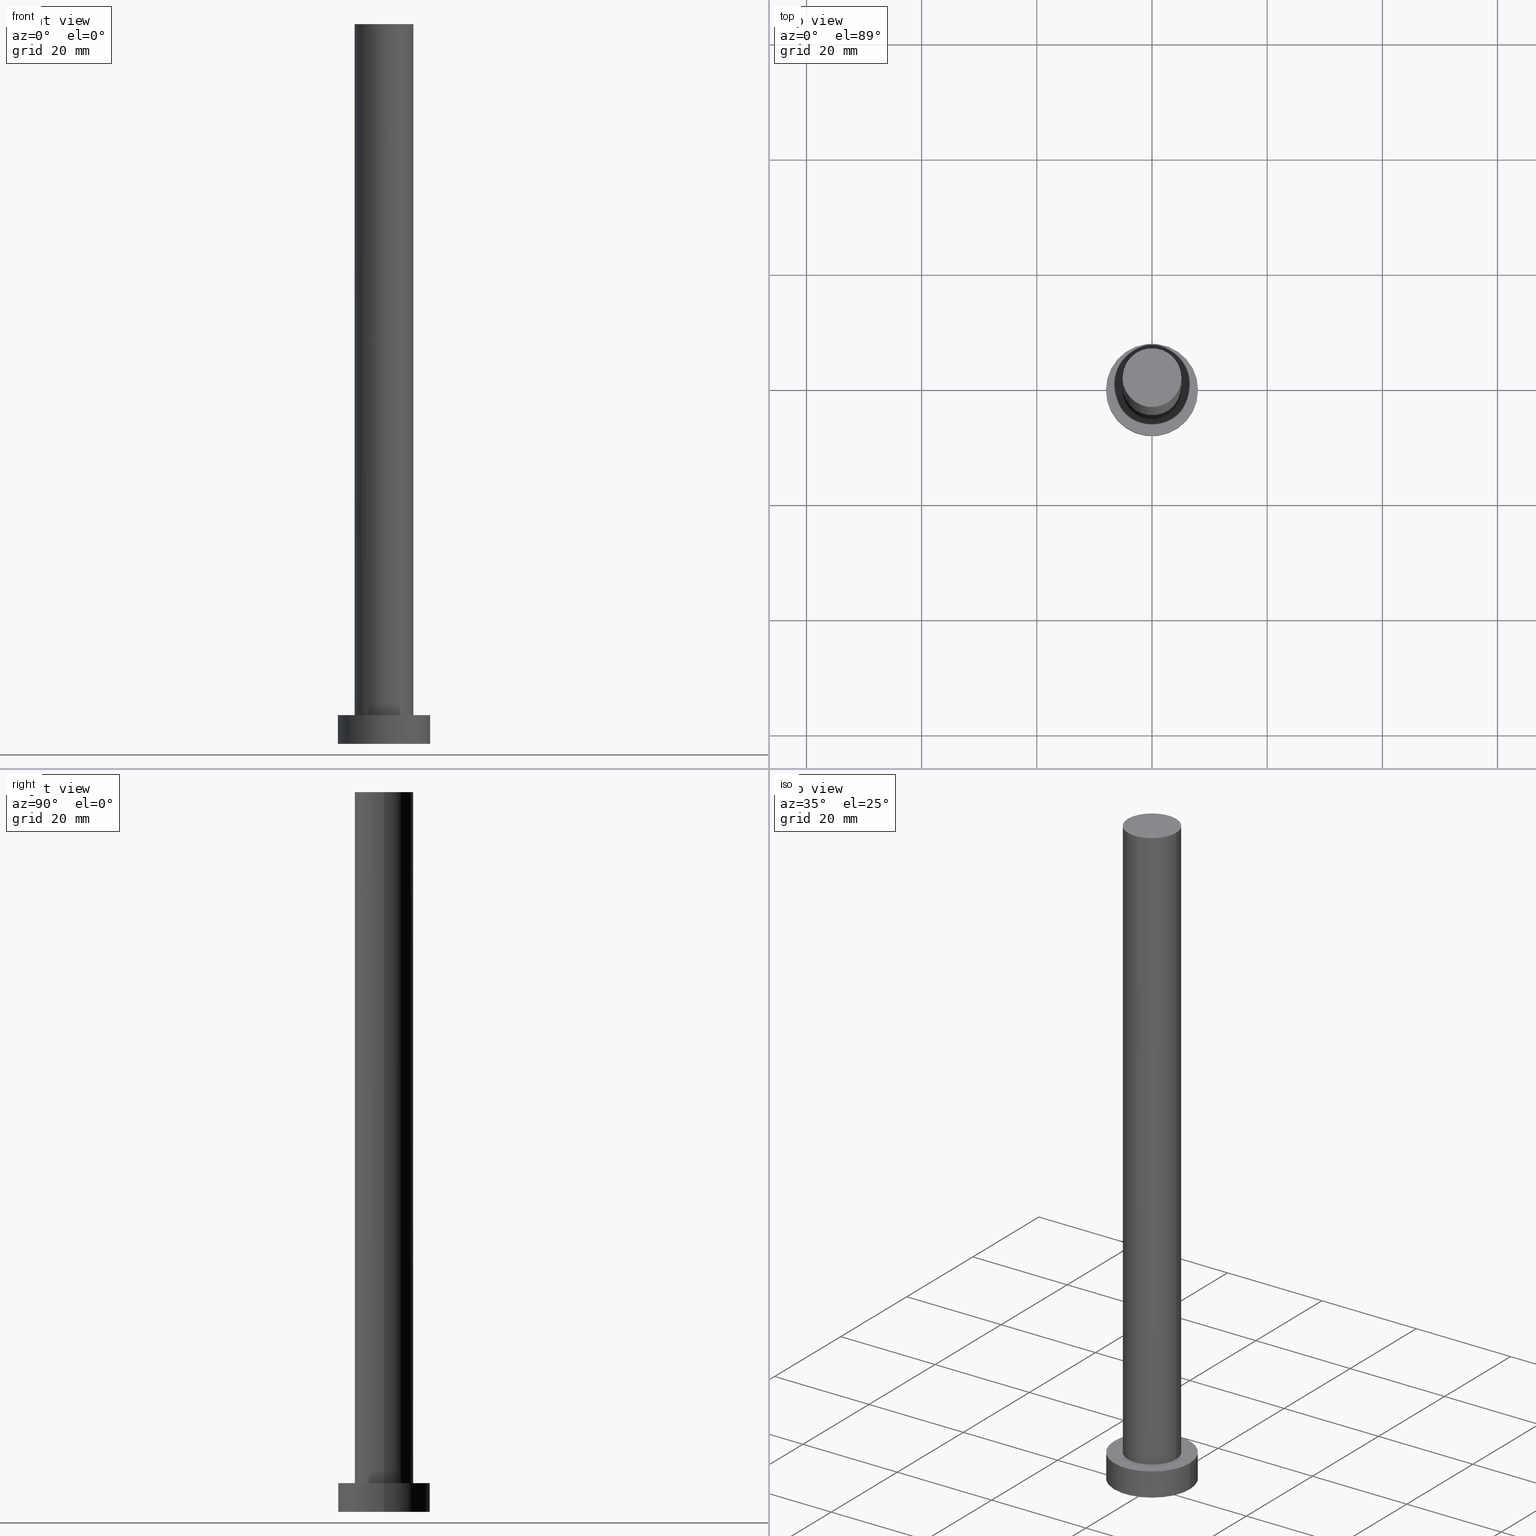
[diagram: canonical four-view strip — front | top / right | iso, engineering-drawing reading convention]
A machine part, canonical four-view strip (front | top / right | iso — engineering-drawing reading convention). The complete STEP part file that produces these views, byte-faithful:
ISO-10303-21;
HEADER;
FILE_DESCRIPTION (( 'STEP AP203' ),
    '1' );
FILE_NAME ('1179.STEP',
    '2023-02-12T11:25:21',
    ( '' ),
    ( '' ),
    'SwSTEP 2.0',
    'SolidWorks 2019',
    '' );
FILE_SCHEMA (( 'CONFIG_CONTROL_DESIGN' ));
ENDSEC;

DATA;
#1 = LINE ( 'NONE', #50, #9 ) ;
#2 = DIRECTION ( 'NONE',  ( 1.000000000000000000, 0.000000000000000000, 0.000000000000000000 ) ) ;
#3 = ORIENTED_EDGE ( 'NONE', *, *, #122, .F. ) ;
#4 = CARTESIAN_POINT ( 'NONE',  ( 8.000000000000000000, 9.797174393178825657E-16, 5.000000000000000000 ) ) ;
#5 = MECHANICAL_CONTEXT ( 'NONE', #157, 'mechanical' ) ;
#6 = ADVANCED_FACE ( 'NONE', ( #36 ), #31, .T. ) ;
#7 = COORDINATED_UNIVERSAL_TIME_OFFSET ( 1, 0, .AHEAD. ) ;
#8 = PERSON_AND_ORGANIZATION ( #10, #100 ) ;
#9 = VECTOR ( 'NONE', #140, 1000.000000000000000 ) ;
#10 = PERSON ( 'NEUR�EN�', 'NEUR�EN�', 'NEUR�EN�', ('NEUR�EN�'), ('NEUR�EN�'), ('NEUR�EN�') ) ;
#11 = CIRCLE ( 'NONE', #68, 5.100000000000001421 ) ;
#12 = CALENDAR_DATE ( 2023, 12, 2 ) ;
#13 = VERTEX_POINT ( 'NONE', #98 ) ;
#14 = ORIENTED_EDGE ( 'NONE', *, *, #19, .T. ) ;
#15 = DIRECTION ( 'NONE',  ( -0.000000000000000000, -0.000000000000000000, -1.000000000000000000 ) ) ;
#16 = APPROVAL_PERSON_ORGANIZATION ( #191, #217, #170 ) ;
#17 = PRODUCT_RELATED_PRODUCT_CATEGORY ( 'detail', '', ( #242 ) ) ;
#18 = DIRECTION ( 'NONE',  ( 1.000000000000000000, 0.000000000000000000, -0.000000000000000000 ) ) ;
#19 = EDGE_CURVE ( 'NONE', #34, #42, #172, .T. ) ;
#20 = CARTESIAN_POINT ( 'NONE',  ( 0.000000000000000000, 0.000000000000000000, 125.0000000000000000 ) ) ;
#21 = PRODUCT_DEFINITION_SHAPE ( 'NONE', 'NONE',  #144 ) ;
#22 = DIRECTION ( 'NONE',  ( 0.000000000000000000, 0.000000000000000000, 1.000000000000000000 ) ) ;
#23 = ORIENTED_EDGE ( 'NONE', *, *, #154, .T. ) ;
#24 = PLANE ( 'NONE',  #121 ) ;
#25 = AXIS2_PLACEMENT_3D ( 'NONE', #20, #162, #142 ) ;
#26 = CARTESIAN_POINT ( 'NONE',  ( 0.000000000000000000, 0.000000000000000000, 5.000000000000000000 ) ) ;
#27 = EDGE_CURVE ( 'NONE', #113, #34, #137, .T. ) ;
#28 = DIRECTION ( 'NONE',  ( 0.000000000000000000, 0.000000000000000000, 1.000000000000000000 ) ) ;
#29 = LINE ( 'NONE', #226, #197 ) ;
#30 = DATE_AND_TIME ( #252, #241 ) ;
#31 = CYLINDRICAL_SURFACE ( 'NONE', #85, 8.000000000000000000 ) ;
#32 = PERSON_AND_ORGANIZATION_ROLE ( 'design_supplier' ) ;
#33 = LOCAL_TIME ( 12, 25, 21.00000000000000000, #58 ) ;
#34 = VERTEX_POINT ( 'NONE', #127 ) ;
#35 = ORIENTED_EDGE ( 'NONE', *, *, #19, .F. ) ;
#36 = FACE_OUTER_BOUND ( 'NONE', #116, .T. ) ;
#37 = EDGE_LOOP ( 'NONE', ( #61, #233, #132, #130 ) ) ;
#38 = DIRECTION ( 'NONE',  ( 1.000000000000000000, 0.000000000000000000, 0.000000000000000000 ) ) ;
#39 = ORIENTED_EDGE ( 'NONE', *, *, #27, .T. ) ;
#40 = CC_DESIGN_PERSON_AND_ORGANIZATION_ASSIGNMENT ( #8, #245, ( #212 ) ) ;
#41 = CARTESIAN_POINT ( 'NONE',  ( -5.100000000000001421, 0.000000000000000000, 125.0000000000000000 ) ) ;
#42 = VERTEX_POINT ( 'NONE', #149 ) ;
#43 = CC_DESIGN_APPROVAL ( #217, ( #212 ) ) ;
#44 = CARTESIAN_POINT ( 'NONE',  ( -5.100000000000001421, 0.000000000000000000, 5.000000000000000000 ) ) ;
#45 = AXIS2_PLACEMENT_3D ( 'NONE', #179, #47, #201 ) ;
#46 = CARTESIAN_POINT ( 'NONE',  ( 0.000000000000000000, 0.000000000000000000, 125.0000000000000000 ) ) ;
#47 = DIRECTION ( 'NONE',  ( 0.000000000000000000, 0.000000000000000000, 1.000000000000000000 ) ) ;
#48 = EDGE_LOOP ( 'NONE', ( #202, #164 ) ) ;
#49 = CC_DESIGN_PERSON_AND_ORGANIZATION_ASSIGNMENT ( #171, #126, ( #144 ) ) ;
#50 = CARTESIAN_POINT ( 'NONE',  ( 5.100000000000001421, 6.245698675651502811E-16, 125.0000000000000000 ) ) ;
#51 = CIRCLE ( 'NONE', #86, 8.000000000000000000 ) ;
#52 = COORDINATED_UNIVERSAL_TIME_OFFSET ( 1, 0, .AHEAD. ) ;
#53 = APPROVAL_DATE_TIME ( #209, #87 ) ;
#54 = PERSON_AND_ORGANIZATION_ROLE ( 'creator' ) ;
#55 = ORIENTED_EDGE ( 'NONE', *, *, #239, .T. ) ;
#56 = EDGE_LOOP ( 'NONE', ( #23, #55 ) ) ;
#57 = VECTOR ( 'NONE', #210, 1000.000000000000000 ) ;
#58 = COORDINATED_UNIVERSAL_TIME_OFFSET ( 1, 0, .AHEAD. ) ;
#59 = APPLICATION_CONTEXT ( 'configuration controlled 3d designs of mechanical parts and assemblies' ) ;
#60 = EDGE_CURVE ( 'NONE', #107, #207, #29, .T. ) ;
#61 = ORIENTED_EDGE ( 'NONE', *, *, #177, .F. ) ;
#62 = CIRCLE ( 'NONE', #93, 5.100000000000001421 ) ;
#63 = APPROVAL_PERSON_ORGANIZATION ( #73, #87, #231 ) ;
#64 = DIRECTION ( 'NONE',  ( 1.000000000000000000, 0.000000000000000000, 0.000000000000000000 ) ) ;
#65 = CC_DESIGN_DATE_AND_TIME_ASSIGNMENT ( #74, #112, ( #212 ) ) ;
#66 = CYLINDRICAL_SURFACE ( 'NONE', #215, 8.000000000000000000 ) ;
#67 = DIRECTION ( 'NONE',  ( 1.000000000000000000, 0.000000000000000000, -0.000000000000000000 ) ) ;
#68 = AXIS2_PLACEMENT_3D ( 'NONE', #89, #105, #184 ) ;
#69 = DIRECTION ( 'NONE',  ( -1.000000000000000000, 0.000000000000000000, 0.000000000000000000 ) ) ;
#70 = CARTESIAN_POINT ( 'NONE',  ( 0.000000000000000000, 0.000000000000000000, 125.0000000000000000 ) ) ;
#71 = CARTESIAN_POINT ( 'NONE',  ( 0.000000000000000000, 0.000000000000000000, 5.000000000000000000 ) ) ;
#72 = AXIS2_PLACEMENT_3D ( 'NONE', #70, #160, #2 ) ;
#73 = PERSON_AND_ORGANIZATION ( #10, #100 ) ;
#74 = DATE_AND_TIME ( #96, #152 ) ;
#75 = DIRECTION ( 'NONE',  ( 0.000000000000000000, 0.000000000000000000, 1.000000000000000000 ) ) ;
#76 = COORDINATED_UNIVERSAL_TIME_OFFSET ( 1, 0, .AHEAD. ) ;
#77 = DIRECTION ( 'NONE',  ( -0.000000000000000000, -0.000000000000000000, -1.000000000000000000 ) ) ;
#78 = CARTESIAN_POINT ( 'NONE',  ( 0.000000000000000000, 0.000000000000000000, 0.000000000000000000 ) ) ;
#79 = EDGE_CURVE ( 'NONE', #183, #207, #62, .T. ) ;
#80 = ORIENTED_EDGE ( 'NONE', *, *, #79, .F. ) ;
#81 = ORIENTED_EDGE ( 'NONE', *, *, #246, .T. ) ;
#82 = DIRECTION ( 'NONE',  ( 1.000000000000000000, 0.000000000000000000, 0.000000000000000000 ) ) ;
#83 = MANIFOLD_SOLID_BREP ( 'P�idat vysunut�m3', #167 ) ;
#84 = DIRECTION ( 'NONE',  ( 0.000000000000000000, 0.000000000000000000, 1.000000000000000000 ) ) ;
#85 = AXIS2_PLACEMENT_3D ( 'NONE', #169, #77, #228 ) ;
#86 = AXIS2_PLACEMENT_3D ( 'NONE', #158, #235, #64 ) ;
#87 = APPROVAL ( #224, 'NEUR�EN�' ) ;
#88 =( LENGTH_UNIT ( ) NAMED_UNIT ( * ) SI_UNIT ( .MILLI., .METRE. ) );
#89 = CARTESIAN_POINT ( 'NONE',  ( 0.000000000000000000, 0.000000000000000000, 125.0000000000000000 ) ) ;
#90 = CARTESIAN_POINT ( 'NONE',  ( 0.000000000000000000, 0.000000000000000000, 0.000000000000000000 ) ) ;
#91 = ORIENTED_EDGE ( 'NONE', *, *, #79, .T. ) ;
#92 = DIRECTION ( 'NONE',  ( 1.000000000000000000, 0.000000000000000000, 0.000000000000000000 ) ) ;
#93 = AXIS2_PLACEMENT_3D ( 'NONE', #71, #146, #82 ) ;
#94 = APPROVAL_PERSON_ORGANIZATION ( #189, #128, #147 ) ;
#95 = EDGE_CURVE ( 'NONE', #34, #113, #51, .T. ) ;
#96 = CALENDAR_DATE ( 2023, 12, 2 ) ;
#97 = APPROVAL_DATE_TIME ( #30, #128 ) ;
#98 = CARTESIAN_POINT ( 'NONE',  ( 5.100000000000001421, 6.245698675651502811E-16, 125.0000000000000000 ) ) ;
#99 = CC_DESIGN_APPROVAL ( #128, ( #144 ) ) ;
#100 = ORGANIZATION ( 'NEUR�EN�', 'NEUR�EN�', '' ) ;
#101 = CYLINDRICAL_SURFACE ( 'NONE', #25, 5.100000000000001421 ) ;
#102 = CC_DESIGN_PERSON_AND_ORGANIZATION_ASSIGNMENT ( #108, #32, ( #204 ) ) ;
#103 = FACE_OUTER_BOUND ( 'NONE', #56, .T. ) ;
#104 = EDGE_LOOP ( 'NONE', ( #187, #39 ) ) ;
#105 = DIRECTION ( 'NONE',  ( 0.000000000000000000, 0.000000000000000000, 1.000000000000000000 ) ) ;
#106 = AXIS2_PLACEMENT_3D ( 'NONE', #26, #196, #18 ) ;
#107 = VERTEX_POINT ( 'NONE', #41 ) ;
#108 = PERSON_AND_ORGANIZATION ( #10, #100 ) ;
#109 = CALENDAR_DATE ( 2023, 12, 2 ) ;
#110 =( NAMED_UNIT ( * ) PLANE_ANGLE_UNIT ( ) SI_UNIT ( $, .RADIAN. ) );
#111 = CC_DESIGN_SECURITY_CLASSIFICATION ( #212, ( #204 ) ) ;
#112 = DATE_TIME_ROLE ( 'classification_date' ) ;
#113 = VERTEX_POINT ( 'NONE', #237 ) ;
#114 = DATE_AND_TIME ( #151, #138 ) ;
#115 = VERTEX_POINT ( 'NONE', #161 ) ;
#116 = EDGE_LOOP ( 'NONE', ( #243, #81, #134, #35 ) ) ;
#117 = AXIS2_PLACEMENT_3D ( 'NONE', #46, #182, #178 ) ;
#118 = AXIS2_PLACEMENT_3D ( 'NONE', #165, #139, #69 ) ;
#119 = PLANE ( 'NONE',  #106 ) ;
#120 = DIRECTION ( 'NONE',  ( 0.000000000000000000, 0.000000000000000000, 1.000000000000000000 ) ) ;
#121 = AXIS2_PLACEMENT_3D ( 'NONE', #222, #22, #67 ) ;
#122 = EDGE_CURVE ( 'NONE', #207, #183, #185, .T. ) ;
#123 = DIRECTION ( 'NONE',  ( -1.000000000000000000, 0.000000000000000000, 0.000000000000000000 ) ) ;
#124 = ORIENTED_EDGE ( 'NONE', *, *, #246, .F. ) ;
#125 = CARTESIAN_POINT ( 'NONE',  ( 0.000000000000000000, 0.000000000000000000, 5.000000000000000000 ) ) ;
#126 = PERSON_AND_ORGANIZATION_ROLE ( 'creator' ) ;
#127 = CARTESIAN_POINT ( 'NONE',  ( -8.000000000000000000, 0.000000000000000000, 5.000000000000000000 ) ) ;
#128 = APPROVAL ( #148, 'NEUR�EN�' ) ;
#129 = PERSON_AND_ORGANIZATION ( #10, #100 ) ;
#130 = ORIENTED_EDGE ( 'NONE', *, *, #122, .T. ) ;
#131 = APPLICATION_PROTOCOL_DEFINITION ( 'international standard', 'config_control_design', 1994, #157 ) ;
#132 = ORIENTED_EDGE ( 'NONE', *, *, #60, .T. ) ;
#133 = SHAPE_DEFINITION_REPRESENTATION ( #21, #159 ) ;
#134 = ORIENTED_EDGE ( 'NONE', *, *, #234, .T. ) ;
#135 = EDGE_LOOP ( 'NONE', ( #211, #193, #91, #221 ) ) ;
#136 = ADVANCED_FACE ( 'NONE', ( #199 ), #24, .F. ) ;
#137 = CIRCLE ( 'NONE', #195, 8.000000000000000000 ) ;
#138 = LOCAL_TIME ( 12, 25, 21.00000000000000000, #76 ) ;
#139 = DIRECTION ( 'NONE',  ( -0.000000000000000000, -0.000000000000000000, -1.000000000000000000 ) ) ;
#140 = DIRECTION ( 'NONE',  ( -0.000000000000000000, -0.000000000000000000, -1.000000000000000000 ) ) ;
#141 = CYLINDRICAL_SURFACE ( 'NONE', #118, 5.100000000000001421 ) ;
#142 = DIRECTION ( 'NONE',  ( -1.000000000000000000, 0.000000000000000000, 0.000000000000000000 ) ) ;
#143 = PLANE ( 'NONE',  #117 ) ;
#144 = PRODUCT_DEFINITION ( 'NEZN�M�', '', #204, #155 ) ;
#145 = COORDINATED_UNIVERSAL_TIME_OFFSET ( 1, 0, .AHEAD. ) ;
#146 = DIRECTION ( 'NONE',  ( 0.000000000000000000, 0.000000000000000000, 1.000000000000000000 ) ) ;
#147 = APPROVAL_ROLE ( '' ) ;
#148 = APPROVAL_STATUS ( 'not_yet_approved' ) ;
#149 = CARTESIAN_POINT ( 'NONE',  ( -8.000000000000000000, 0.000000000000000000, 0.000000000000000000 ) ) ;
#150 = ADVANCED_FACE ( 'NONE', ( #103 ), #143, .T. ) ;
#151 = CALENDAR_DATE ( 2023, 12, 2 ) ;
#152 = LOCAL_TIME ( 12, 25, 21.00000000000000000, #145 ) ;
#153 = DIRECTION ( 'NONE',  ( 1.000000000000000000, 0.000000000000000000, 0.000000000000000000 ) ) ;
#154 = EDGE_CURVE ( 'NONE', #107, #13, #255, .T. ) ;
#155 = DESIGN_CONTEXT ( 'detailed design', #59, 'design' ) ;
#156 = CIRCLE ( 'NONE', #214, 8.000000000000000000 ) ;
#157 = APPLICATION_CONTEXT ( 'configuration controlled 3d designs of mechanical parts and assemblies' ) ;
#158 = CARTESIAN_POINT ( 'NONE',  ( 0.000000000000000000, 0.000000000000000000, 5.000000000000000000 ) ) ;
#159 = ADVANCED_BREP_SHAPE_REPRESENTATION ( '1179', ( #83, #229 ), #208 ) ;
#160 = DIRECTION ( 'NONE',  ( 0.000000000000000000, 0.000000000000000000, 1.000000000000000000 ) ) ;
#161 = CARTESIAN_POINT ( 'NONE',  ( 8.000000000000000000, 9.797174393178825657E-16, 0.000000000000000000 ) ) ;
#162 = DIRECTION ( 'NONE',  ( -0.000000000000000000, -0.000000000000000000, -1.000000000000000000 ) ) ;
#163 = UNCERTAINTY_MEASURE_WITH_UNIT (LENGTH_MEASURE( 1.000000000000000082E-05 ), #88, 'distance_accuracy_value', 'NONE');
#164 = ORIENTED_EDGE ( 'NONE', *, *, #234, .F. ) ;
#165 = CARTESIAN_POINT ( 'NONE',  ( 0.000000000000000000, 0.000000000000000000, 125.0000000000000000 ) ) ;
#166 = DATE_TIME_ROLE ( 'creation_date' ) ;
#167 = CLOSED_SHELL ( 'NONE', ( #213, #6, #230, #251, #136, #200, #150 ) ) ;
#168 = VECTOR ( 'NONE', #203, 1000.000000000000000 ) ;
#169 = CARTESIAN_POINT ( 'NONE',  ( 0.000000000000000000, 0.000000000000000000, 5.000000000000000000 ) ) ;
#170 = APPROVAL_ROLE ( '' ) ;
#171 = PERSON_AND_ORGANIZATION ( #10, #100 ) ;
#172 = LINE ( 'NONE', #232, #57 ) ;
#173 = EDGE_LOOP ( 'NONE', ( #3, #80 ) ) ;
#174 = CC_DESIGN_DATE_AND_TIME_ASSIGNMENT ( #205, #166, ( #144 ) ) ;
#175 = ORIENTED_EDGE ( 'NONE', *, *, #95, .F. ) ;
#176 = CC_DESIGN_APPROVAL ( #87, ( #204 ) ) ;
#177 = EDGE_CURVE ( 'NONE', #13, #183, #1, .T. ) ;
#178 = DIRECTION ( 'NONE',  ( 1.000000000000000000, 0.000000000000000000, -0.000000000000000000 ) ) ;
#179 = CARTESIAN_POINT ( 'NONE',  ( 0.000000000000000000, 0.000000000000000000, 0.000000000000000000 ) ) ;
#180 = FACE_OUTER_BOUND ( 'NONE', #192, .T. ) ;
#181 = ORIENTED_EDGE ( 'NONE', *, *, #194, .T. ) ;
#182 = DIRECTION ( 'NONE',  ( 0.000000000000000000, 0.000000000000000000, 1.000000000000000000 ) ) ;
#183 = VERTEX_POINT ( 'NONE', #219 ) ;
#184 = DIRECTION ( 'NONE',  ( 1.000000000000000000, 0.000000000000000000, 0.000000000000000000 ) ) ;
#185 = CIRCLE ( 'NONE', #223, 5.100000000000001421 ) ;
#186 = LOCAL_TIME ( 12, 25, 21.00000000000000000, #52 ) ;
#187 = ORIENTED_EDGE ( 'NONE', *, *, #95, .T. ) ;
#188 = SECURITY_CLASSIFICATION_LEVEL ( 'unclassified' ) ;
#189 = PERSON_AND_ORGANIZATION ( #10, #100 ) ;
#190 = PERSON_AND_ORGANIZATION ( #10, #100 ) ;
#191 = PERSON_AND_ORGANIZATION ( #10, #100 ) ;
#192 = EDGE_LOOP ( 'NONE', ( #124, #175, #14, #181 ) ) ;
#193 = ORIENTED_EDGE ( 'NONE', *, *, #177, .T. ) ;
#194 = EDGE_CURVE ( 'NONE', #42, #115, #156, .T. ) ;
#195 = AXIS2_PLACEMENT_3D ( 'NONE', #249, #75, #38 ) ;
#196 = DIRECTION ( 'NONE',  ( 0.000000000000000000, 0.000000000000000000, 1.000000000000000000 ) ) ;
#197 = VECTOR ( 'NONE', #15, 1000.000000000000000 ) ;
#198 = FACE_OUTER_BOUND ( 'NONE', #37, .T. ) ;
#199 = FACE_OUTER_BOUND ( 'NONE', #48, .T. ) ;
#200 = ADVANCED_FACE ( 'NONE', ( #198 ), #141, .T. ) ;
#201 = DIRECTION ( 'NONE',  ( 1.000000000000000000, 0.000000000000000000, 0.000000000000000000 ) ) ;
#202 = ORIENTED_EDGE ( 'NONE', *, *, #194, .F. ) ;
#203 = DIRECTION ( 'NONE',  ( -0.000000000000000000, -0.000000000000000000, -1.000000000000000000 ) ) ;
#204 = PRODUCT_DEFINITION_FORMATION_WITH_SPECIFIED_SOURCE ( 'LIBOVOLN�', '', #242, .NOT_KNOWN. ) ;
#205 = DATE_AND_TIME ( #12, #186 ) ;
#206 = APPLICATION_PROTOCOL_DEFINITION ( 'international standard', 'config_control_design', 1994, #59 ) ;
#207 = VERTEX_POINT ( 'NONE', #44 ) ;
#208 =( GEOMETRIC_REPRESENTATION_CONTEXT ( 3 ) GLOBAL_UNCERTAINTY_ASSIGNED_CONTEXT ( ( #163 ) ) GLOBAL_UNIT_ASSIGNED_CONTEXT ( ( #88, #110, #248 ) ) REPRESENTATION_CONTEXT ( 'NONE', 'WORKASPACE' ) );
#209 = DATE_AND_TIME ( #109, #33 ) ;
#210 = DIRECTION ( 'NONE',  ( -0.000000000000000000, -0.000000000000000000, -1.000000000000000000 ) ) ;
#211 = ORIENTED_EDGE ( 'NONE', *, *, #239, .F. ) ;
#212 = SECURITY_CLASSIFICATION ( '', '', #188 ) ;
#213 = ADVANCED_FACE ( 'NONE', ( #240 ), #101, .T. ) ;
#214 = AXIS2_PLACEMENT_3D ( 'NONE', #90, #84, #254 ) ;
#215 = AXIS2_PLACEMENT_3D ( 'NONE', #125, #220, #123 ) ;
#216 = FACE_OUTER_BOUND ( 'NONE', #104, .T. ) ;
#217 = APPROVAL ( #250, 'NEUR�EN�' ) ;
#218 = LINE ( 'NONE', #4, #168 ) ;
#219 = CARTESIAN_POINT ( 'NONE',  ( 5.100000000000001421, 6.245698675651502811E-16, 5.000000000000000000 ) ) ;
#220 = DIRECTION ( 'NONE',  ( -0.000000000000000000, -0.000000000000000000, -1.000000000000000000 ) ) ;
#221 = ORIENTED_EDGE ( 'NONE', *, *, #60, .F. ) ;
#222 = CARTESIAN_POINT ( 'NONE',  ( 0.000000000000000000, 0.000000000000000000, 0.000000000000000000 ) ) ;
#223 = AXIS2_PLACEMENT_3D ( 'NONE', #238, #120, #92 ) ;
#224 = APPROVAL_STATUS ( 'not_yet_approved' ) ;
#225 = CC_DESIGN_PERSON_AND_ORGANIZATION_ASSIGNMENT ( #129, #247, ( #242 ) ) ;
#226 = CARTESIAN_POINT ( 'NONE',  ( -5.100000000000001421, 0.000000000000000000, 125.0000000000000000 ) ) ;
#227 = APPROVAL_DATE_TIME ( #114, #217 ) ;
#228 = DIRECTION ( 'NONE',  ( -1.000000000000000000, 0.000000000000000000, 0.000000000000000000 ) ) ;
#229 = AXIS2_PLACEMENT_3D ( 'NONE', #78, #28, #153 ) ;
#230 = ADVANCED_FACE ( 'NONE', ( #180 ), #66, .T. ) ;
#231 = APPROVAL_ROLE ( '' ) ;
#232 = CARTESIAN_POINT ( 'NONE',  ( -8.000000000000000000, 0.000000000000000000, 5.000000000000000000 ) ) ;
#233 = ORIENTED_EDGE ( 'NONE', *, *, #154, .F. ) ;
#234 = EDGE_CURVE ( 'NONE', #115, #42, #236, .T. ) ;
#235 = DIRECTION ( 'NONE',  ( 0.000000000000000000, 0.000000000000000000, 1.000000000000000000 ) ) ;
#236 = CIRCLE ( 'NONE', #45, 8.000000000000000000 ) ;
#237 = CARTESIAN_POINT ( 'NONE',  ( 8.000000000000000000, 9.797174393178825657E-16, 5.000000000000000000 ) ) ;
#238 = CARTESIAN_POINT ( 'NONE',  ( 0.000000000000000000, 0.000000000000000000, 5.000000000000000000 ) ) ;
#239 = EDGE_CURVE ( 'NONE', #13, #107, #11, .T. ) ;
#240 = FACE_OUTER_BOUND ( 'NONE', #135, .T. ) ;
#241 = LOCAL_TIME ( 12, 25, 21.00000000000000000, #7 ) ;
#242 = PRODUCT ( '1179', '1179', '', ( #5 ) ) ;
#243 = ORIENTED_EDGE ( 'NONE', *, *, #27, .F. ) ;
#244 = FACE_BOUND ( 'NONE', #173, .T. ) ;
#245 = PERSON_AND_ORGANIZATION_ROLE ( 'classification_officer' ) ;
#246 = EDGE_CURVE ( 'NONE', #113, #115, #218, .T. ) ;
#247 = PERSON_AND_ORGANIZATION_ROLE ( 'design_owner' ) ;
#248 =( NAMED_UNIT ( * ) SI_UNIT ( $, .STERADIAN. ) SOLID_ANGLE_UNIT ( ) );
#249 = CARTESIAN_POINT ( 'NONE',  ( 0.000000000000000000, 0.000000000000000000, 5.000000000000000000 ) ) ;
#250 = APPROVAL_STATUS ( 'not_yet_approved' ) ;
#251 = ADVANCED_FACE ( 'NONE', ( #244, #216 ), #119, .T. ) ;
#252 = CALENDAR_DATE ( 2023, 12, 2 ) ;
#253 = CC_DESIGN_PERSON_AND_ORGANIZATION_ASSIGNMENT ( #190, #54, ( #204 ) ) ;
#254 = DIRECTION ( 'NONE',  ( 1.000000000000000000, 0.000000000000000000, 0.000000000000000000 ) ) ;
#255 = CIRCLE ( 'NONE', #72, 5.100000000000001421 ) ;
ENDSEC;
END-ISO-10303-21;
